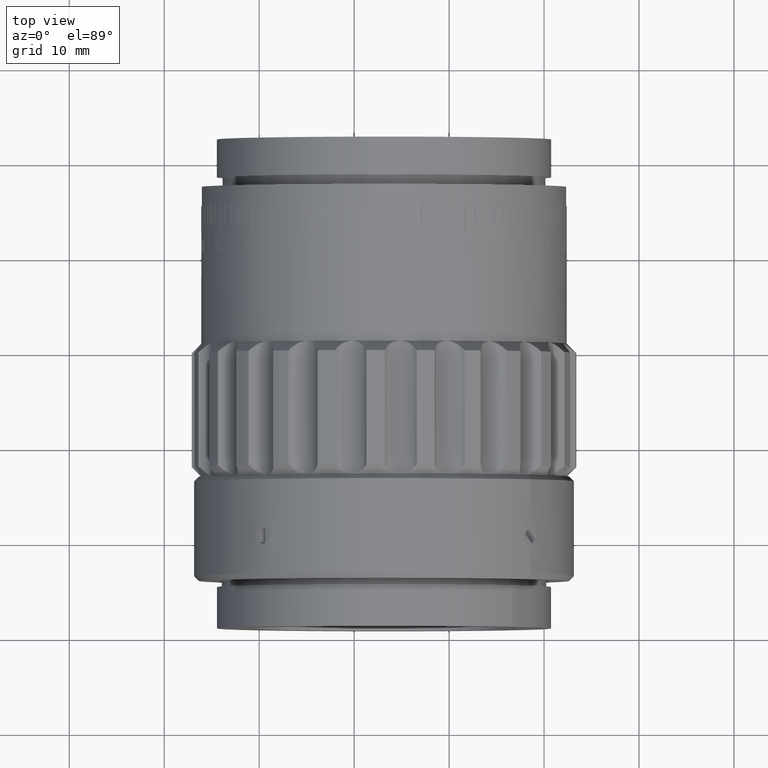
[diagram: clean part render]
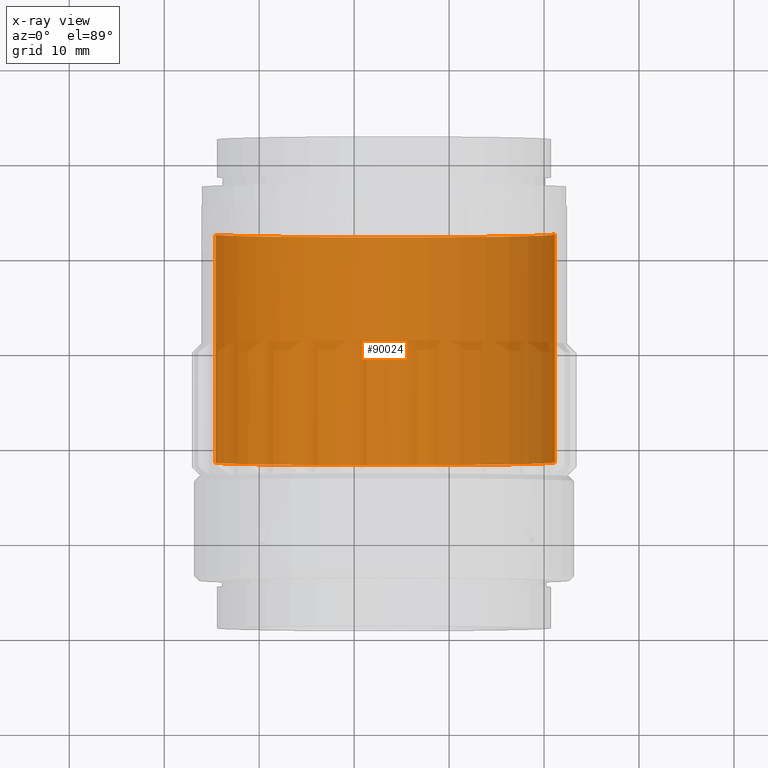
[diagram: x-ray — body ghosted, one internal face saturated and labeled with its STEP entity id]
A machine part, top view, then the same camera in x-ray: the body is ghosted and one INTERNAL B-rep face — a face not visible from any outside direction — is saturated and labeled: STEP entity #90024.
In plain terms, the highlighted cylindrical surface (partial cylindrical patch) has radius 18 mm, axis along (0, 1, 0).
Its self-contained STEP definition (entity closure, byte-faithful):
#1212 = ORIENTED_EDGE ( 'NONE', *, *, #78201, .F. ) ;
#4201 = FACE_OUTER_BOUND ( 'NONE', #39690, .T. ) ;
#5457 = CYLINDRICAL_SURFACE ( 'NONE', #84823, 18.00000000000001100 ) ;
#6364 = LINE ( 'NONE', #50635, #20753 ) ;
#7387 = DIRECTION ( 'NONE',  ( 0.0000000000000000000, 0.0000000000000000000, 1.000000000000000000 ) ) ;
#8262 = CARTESIAN_POINT ( 'NONE',  ( 0.0000000000000000000, -2.714578211897585200, 0.0000000000000000000 ) ) ;
#8362 = VERTEX_POINT ( 'NONE', #61504 ) ;
#9289 = DIRECTION ( 'NONE',  ( -0.0000000000000000000, 1.000000000000000000, -0.0000000000000000000 ) ) ;
#10124 = AXIS2_PLACEMENT_3D ( 'NONE', #8262, #58386, #43007 ) ;
#11827 = DIRECTION ( 'NONE',  ( -0.0000000000000000000, 1.000000000000000000, -0.0000000000000000000 ) ) ;
#16900 = EDGE_CURVE ( 'NONE', #57714, #8362, #58702, .T. ) ;
#18590 = CIRCLE ( 'NONE', #60298, 18.00000000000001100 ) ;
#19533 = CARTESIAN_POINT ( 'NONE',  ( 0.0000000000000000000, 40.13211049016474900, 0.0000000000000000000 ) ) ;
#20753 = VECTOR ( 'NONE', #9289, 1000.000000000000000 ) ;
#21902 = LINE ( 'NONE', #93455, #71694 ) ;
#32192 = ORIENTED_EDGE ( 'NONE', *, *, #37602, .T. ) ;
#37602 = EDGE_CURVE ( 'NONE', #57753, #57714, #6364, .T. ) ;
#39690 = EDGE_LOOP ( 'NONE', ( #1212, #53091, #32192, #72521 ) ) ;
#43007 = DIRECTION ( 'NONE',  ( 0.0000000000000000000, 0.0000000000000000000, 1.000000000000000000 ) ) ;
#43281 = DIRECTION ( 'NONE',  ( -0.0000000000000000000, 1.000000000000000000, -0.0000000000000000000 ) ) ;
#50635 = CARTESIAN_POINT ( 'NONE',  ( 0.0000000000000000000, 40.13211049016474900, 18.00000000000001100 ) ) ;
#53091 = ORIENTED_EDGE ( 'NONE', *, *, #90195, .F. ) ;
#53541 = DIRECTION ( 'NONE',  ( 0.0000000000000000000, 0.0000000000000000000, 1.000000000000000000 ) ) ;
#56090 = CARTESIAN_POINT ( 'NONE',  ( 0.0000000000000000000, -2.714578211897585200, 18.00000000000000700 ) ) ;
#57142 = DIRECTION ( 'NONE',  ( -0.0000000000000000000, 1.000000000000000000, -0.0000000000000000000 ) ) ;
#57714 = VERTEX_POINT ( 'NONE', #56090 ) ;
#57753 = VERTEX_POINT ( 'NONE', #106951 ) ;
#58386 = DIRECTION ( 'NONE',  ( -0.0000000000000000000, 1.000000000000000000, -0.0000000000000000000 ) ) ;
#58702 = CIRCLE ( 'NONE', #10124, 18.00000000000000700 ) ;
#60298 = AXIS2_PLACEMENT_3D ( 'NONE', #83087, #57142, #7387 ) ;
#61504 = CARTESIAN_POINT ( 'NONE',  ( 2.204364238465236600E-015, -2.714578211897585200, -18.00000000000000700 ) ) ;
#67203 = CARTESIAN_POINT ( 'NONE',  ( 2.204364238465237000E-015, -26.71457821189759200, -18.00000000000001100 ) ) ;
#71694 = VECTOR ( 'NONE', #43281, 1000.000000000000000 ) ;
#72521 = ORIENTED_EDGE ( 'NONE', *, *, #16900, .T. ) ;
#78201 = EDGE_CURVE ( 'NONE', #96918, #8362, #21902, .T. ) ;
#83087 = CARTESIAN_POINT ( 'NONE',  ( 0.0000000000000000000, -26.71457821189759200, 0.0000000000000000000 ) ) ;
#84823 = AXIS2_PLACEMENT_3D ( 'NONE', #19533, #11827, #53541 ) ;
#90024 = ADVANCED_FACE ( 'NONE', ( #4201 ), #5457, .F. ) ;
#90195 = EDGE_CURVE ( 'NONE', #57753, #96918, #18590, .T. ) ;
#93455 = CARTESIAN_POINT ( 'NONE',  ( 2.204364238465237000E-015, 40.13211049016474900, -18.00000000000001100 ) ) ;
#96918 = VERTEX_POINT ( 'NONE', #67203 ) ;
#106951 = CARTESIAN_POINT ( 'NONE',  ( 0.0000000000000000000, -26.71457821189759200, 18.00000000000001100 ) ) ;